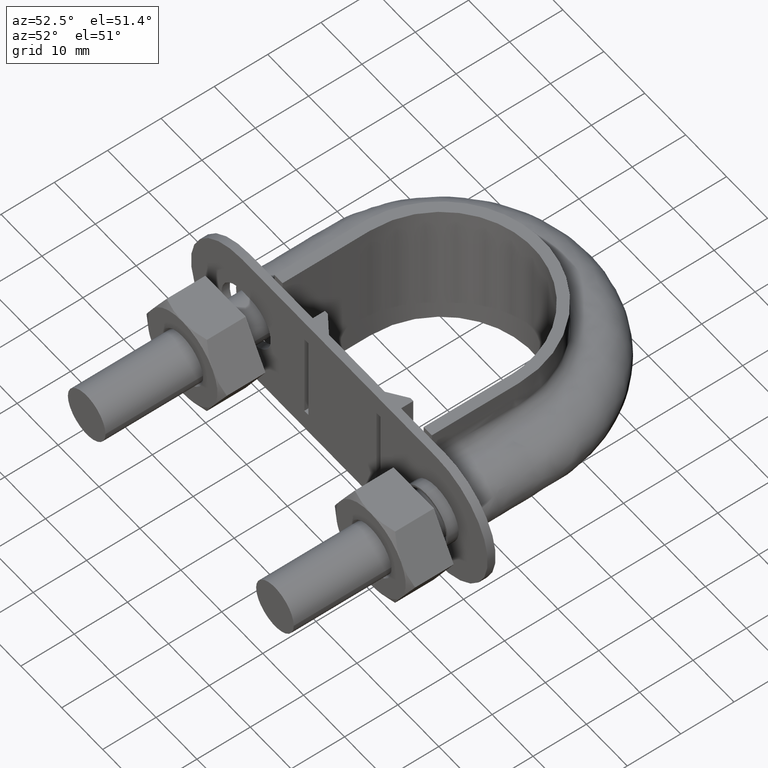
[diagram: clean part render]
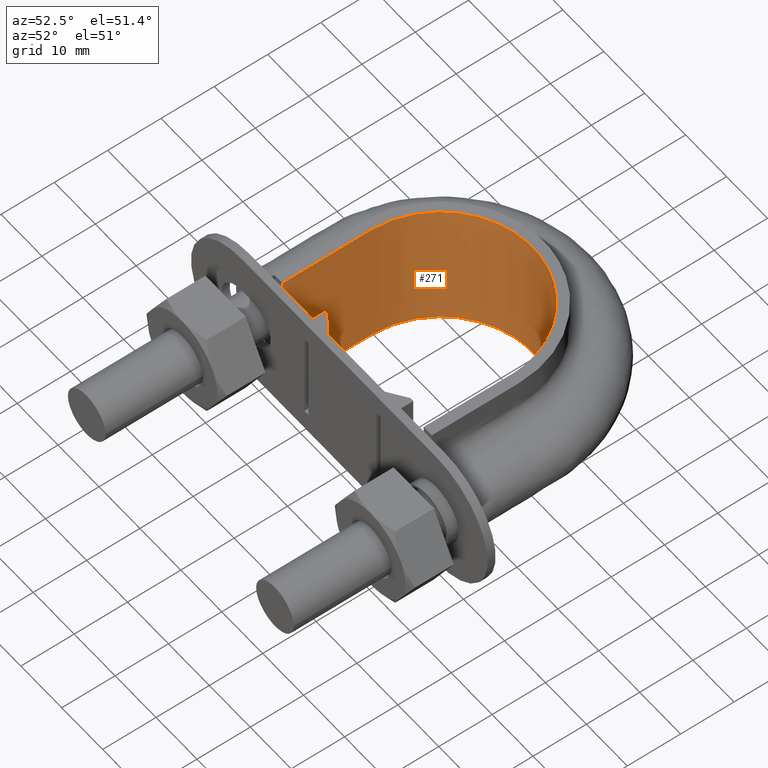
[diagram: same view with one face highlighted and labeled with its STEP entity id]
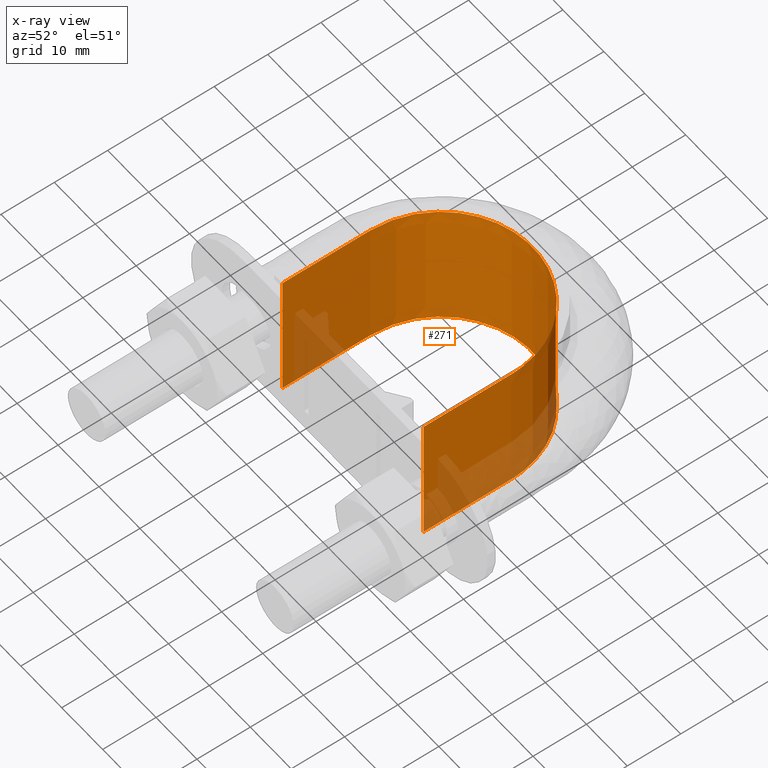
[diagram: x-ray of the same camera — body ghosted, the highlighted face saturated]
A machine part, auxiliary view. The second image highlights one B-rep face of the part: STEP entity #271.
The next image is the same camera in x-ray: the body ghosted, the highlighted face saturated — about 18% of this face is hidden behind the body in this view.
In plain terms, the highlighted face is a SurfaceOfExtrusion surface.
Its self-contained STEP definition (entity closure, byte-faithful):
#271 = ADVANCED_FACE( '', ( #389 ), #390, .T. );
#389 = FACE_OUTER_BOUND( '', #1168, .T. );
#390 = SURFACE_OF_LINEAR_EXTRUSION( '', #1169, #1170 );
#1168 = EDGE_LOOP( '', ( #1737, #1738, #1739, #1740 ) );
#1169 = B_SPLINE_CURVE_WITH_KNOTS( '', 3, ( #1741, #1742, #1743, #1744, #1745, #1746, #1747, #1748, #1749, #1750, #1751, #1752, #1753, #1754, #1755, #1756, #1757 ), .UNSPECIFIED., .F., .F., ( 4, 3, 1, 1, 1, 1, 1, 1, 1, 3, 4 ), ( 0.138743455497382, 1.00000000000000, 1.50000000000000, 2.00000000000000, 3.00000000000000, 4.00000000000000, 5.00000000000000, 6.00000000000000, 6.50000000000000, 7.00000000000000, 7.86125654450262 ), .UNSPECIFIED. );
#1170 = VECTOR( '', #1758, 1000.00000000000 );
#1737 = ORIENTED_EDGE( '', *, *, #2530, .F. );
#1738 = ORIENTED_EDGE( '', *, *, #2517, .F. );
#1739 = ORIENTED_EDGE( '', *, *, #2522, .T. );
#1740 = ORIENTED_EDGE( '', *, *, #2525, .T. );
#1741 = CARTESIAN_POINT( '', ( -17.2500000000000, 32.3000000000000, -69.9996733561149 ) );
#1742 = CARTESIAN_POINT( '', ( -17.2500000000000, 37.7833333333333, -69.9996733561149 ) );
#1743 = CARTESIAN_POINT( '', ( -17.2500000000000, 43.2666666666667, -69.9996733561149 ) );
#1744 = CARTESIAN_POINT( '', ( -17.2500000000000, 48.7500000000000, -69.9996733561149 ) );
#1745 = CARTESIAN_POINT( '', ( -17.2500000000000, 50.2426934616576, -69.9996733561149 ) );
#1746 = CARTESIAN_POINT( '', ( -16.8447140772576, 53.2689573264767, -69.9996733561149 ) );
#1747 = CARTESIAN_POINT( '', ( -14.5369669940350, 58.8768798182963, -69.9996733561149 ) );
#1748 = CARTESIAN_POINT( '', ( -9.02779989662052, 64.3882950029496, -69.9996733561149 ) );
#1749 = CARTESIAN_POINT( '', ( 8.18108714422145E-015, 66.8058524985252, -69.9996733561149 ) );
#1750 = CARTESIAN_POINT( '', ( 9.02779989662053, 64.3882950029496, -69.9996733561149 ) );
#1751 = CARTESIAN_POINT( '', ( 14.5369669940350, 58.8768798182963, -69.9996733561149 ) );
#1752 = CARTESIAN_POINT( '', ( 16.8447140772576, 53.2689573264767, -69.9996733561149 ) );
#1753 = CARTESIAN_POINT( '', ( 17.2500000000000, 50.2426934616576, -69.9996733561149 ) );
#1754 = CARTESIAN_POINT( '', ( 17.2500000000000, 48.7500000000000, -69.9996733561149 ) );
#1755 = CARTESIAN_POINT( '', ( 17.2500000000000, 43.2666666666667, -69.9996733561149 ) );
#1756 = CARTESIAN_POINT( '', ( 17.2500000000000, 37.7833333333333, -69.9996733561149 ) );
#1757 = CARTESIAN_POINT( '', ( 17.2500000000000, 32.3000000000000, -69.9996733561149 ) );
#1758 = DIRECTION( '', ( 0.000000000000000, 0.000000000000000, 1.00000000000000 ) );
#2517 = EDGE_CURVE( '', #2751, #2752, #2753, .T. );
#2522 = EDGE_CURVE( '', #2751, #2761, #2762, .T. );
#2525 = EDGE_CURVE( '', #2761, #2766, #2767, .T. );
#2530 = EDGE_CURVE( '', #2752, #2766, #2774, .T. );
#2751 = VERTEX_POINT( '', #3139 );
#2752 = VERTEX_POINT( '', #3140 );
#2753 = LINE( '', #3141, #3142 );
#2761 = VERTEX_POINT( '', #3191 );
#2762 = B_SPLINE_CURVE_WITH_KNOTS( '', 3, ( #3192, #3193, #3194, #3195, #3196, #3197, #3198, #3199, #3200, #3201, #3202, #3203, #3204, #3205, #3206, #3207, #3208 ), .UNSPECIFIED., .F., .F., ( 4, 3, 1, 1, 1, 1, 1, 1, 1, 3, 4 ), ( 0.138743455497382, 1.00000000000000, 1.50000000000000, 2.00000000000000, 3.00000000000000, 4.00000000000000, 5.00000000000000, 6.00000000000000, 6.50000000000000, 7.00000000000000, 7.86125654450262 ), .UNSPECIFIED. );
#2766 = VERTEX_POINT( '', #3229 );
#2767 = LINE( '', #3230, #3231 );
#2774 = B_SPLINE_CURVE_WITH_KNOTS( '', 3, ( #3294, #3295, #3296, #3297, #3298, #3299, #3300, #3301, #3302, #3303, #3304, #3305, #3306, #3307, #3308, #3309, #3310 ), .UNSPECIFIED., .F., .F., ( 4, 3, 1, 1, 1, 1, 1, 1, 1, 3, 4 ), ( 0.138743455497382, 1.00000000000000, 1.50000000000000, 2.00000000000000, 3.00000000000000, 4.00000000000000, 5.00000000000000, 6.00000000000000, 6.50000000000000, 7.00000000000000, 7.86125654450262 ), .UNSPECIFIED. );
#3139 = CARTESIAN_POINT( '', ( -17.2500000000000, 32.3000000000000, -12.5000000000000 ) );
#3140 = CARTESIAN_POINT( '', ( -17.2500000000000, 32.3000000000000, 12.5000000000000 ) );
#3141 = CARTESIAN_POINT( '', ( -17.2500000000000, 32.3000000000000, -69.9996733561149 ) );
#3142 = VECTOR( '', #3943, 1000.00000000000 );
#3191 = CARTESIAN_POINT( '', ( 17.2500000000000, 32.3000000000000, -12.5000000000000 ) );
#3192 = CARTESIAN_POINT( '', ( -17.2500000000000, 32.3000000000000, -12.5000000000000 ) );
#3193 = CARTESIAN_POINT( '', ( -17.2500000000000, 37.7833333333333, -12.5000000000000 ) );
#3194 = CARTESIAN_POINT( '', ( -17.2500000000000, 43.2666666666667, -12.5000000000000 ) );
#3195 = CARTESIAN_POINT( '', ( -17.2500000000000, 48.7500000000000, -12.5000000000000 ) );
#3196 = CARTESIAN_POINT( '', ( -17.2500000000000, 50.2426934616576, -12.5000000000000 ) );
#3197 = CARTESIAN_POINT( '', ( -16.8447140772576, 53.2689573264767, -12.5000000000000 ) );
#3198 = CARTESIAN_POINT( '', ( -14.5369669940350, 58.8768798182963, -12.5000000000000 ) );
#3199 = CARTESIAN_POINT( '', ( -9.02779989662052, 64.3882950029496, -12.5000000000000 ) );
#3200 = CARTESIAN_POINT( '', ( 8.18108714422145E-015, 66.8058524985252, -12.5000000000000 ) );
#3201 = CARTESIAN_POINT( '', ( 9.02779989662053, 64.3882950029496, -12.5000000000000 ) );
#3202 = CARTESIAN_POINT( '', ( 14.5369669940350, 58.8768798182963, -12.5000000000000 ) );
#3203 = CARTESIAN_POINT( '', ( 16.8447140772576, 53.2689573264767, -12.5000000000000 ) );
#3204 = CARTESIAN_POINT( '', ( 17.2500000000000, 50.2426934616576, -12.5000000000000 ) );
#3205 = CARTESIAN_POINT( '', ( 17.2500000000000, 48.7500000000000, -12.5000000000000 ) );
#3206 = CARTESIAN_POINT( '', ( 17.2500000000000, 43.2666666666667, -12.5000000000000 ) );
#3207 = CARTESIAN_POINT( '', ( 17.2500000000000, 37.7833333333333, -12.5000000000000 ) );
#3208 = CARTESIAN_POINT( '', ( 17.2500000000000, 32.3000000000000, -12.5000000000000 ) );
#3229 = CARTESIAN_POINT( '', ( 17.2500000000000, 32.3000000000000, 12.5000000000000 ) );
#3230 = CARTESIAN_POINT( '', ( 17.2500000000000, 32.3000000000000, -69.9996733561149 ) );
#3231 = VECTOR( '', #3947, 1000.00000000000 );
#3294 = CARTESIAN_POINT( '', ( -17.2500000000000, 32.3000000000000, 12.5000000000000 ) );
#3295 = CARTESIAN_POINT( '', ( -17.2500000000000, 37.7833333333333, 12.5000000000000 ) );
#3296 = CARTESIAN_POINT( '', ( -17.2500000000000, 43.2666666666667, 12.5000000000000 ) );
#3297 = CARTESIAN_POINT( '', ( -17.2500000000000, 48.7500000000000, 12.5000000000000 ) );
#3298 = CARTESIAN_POINT( '', ( -17.2500000000000, 50.2426934616576, 12.5000000000000 ) );
#3299 = CARTESIAN_POINT( '', ( -16.8447140772576, 53.2689573264767, 12.5000000000000 ) );
#3300 = CARTESIAN_POINT( '', ( -14.5369669940350, 58.8768798182963, 12.5000000000000 ) );
#3301 = CARTESIAN_POINT( '', ( -9.02779989662052, 64.3882950029496, 12.5000000000000 ) );
#3302 = CARTESIAN_POINT( '', ( 8.18108714422145E-015, 66.8058524985252, 12.5000000000000 ) );
#3303 = CARTESIAN_POINT( '', ( 9.02779989662053, 64.3882950029496, 12.5000000000000 ) );
#3304 = CARTESIAN_POINT( '', ( 14.5369669940350, 58.8768798182963, 12.5000000000000 ) );
#3305 = CARTESIAN_POINT( '', ( 16.8447140772576, 53.2689573264767, 12.5000000000000 ) );
#3306 = CARTESIAN_POINT( '', ( 17.2500000000000, 50.2426934616576, 12.5000000000000 ) );
#3307 = CARTESIAN_POINT( '', ( 17.2500000000000, 48.7500000000000, 12.5000000000000 ) );
#3308 = CARTESIAN_POINT( '', ( 17.2500000000000, 43.2666666666667, 12.5000000000000 ) );
#3309 = CARTESIAN_POINT( '', ( 17.2500000000000, 37.7833333333333, 12.5000000000000 ) );
#3310 = CARTESIAN_POINT( '', ( 17.2500000000000, 32.3000000000000, 12.5000000000000 ) );
#3943 = DIRECTION( '', ( 0.000000000000000, 0.000000000000000, 1.00000000000000 ) );
#3947 = DIRECTION( '', ( 0.000000000000000, 0.000000000000000, 1.00000000000000 ) );